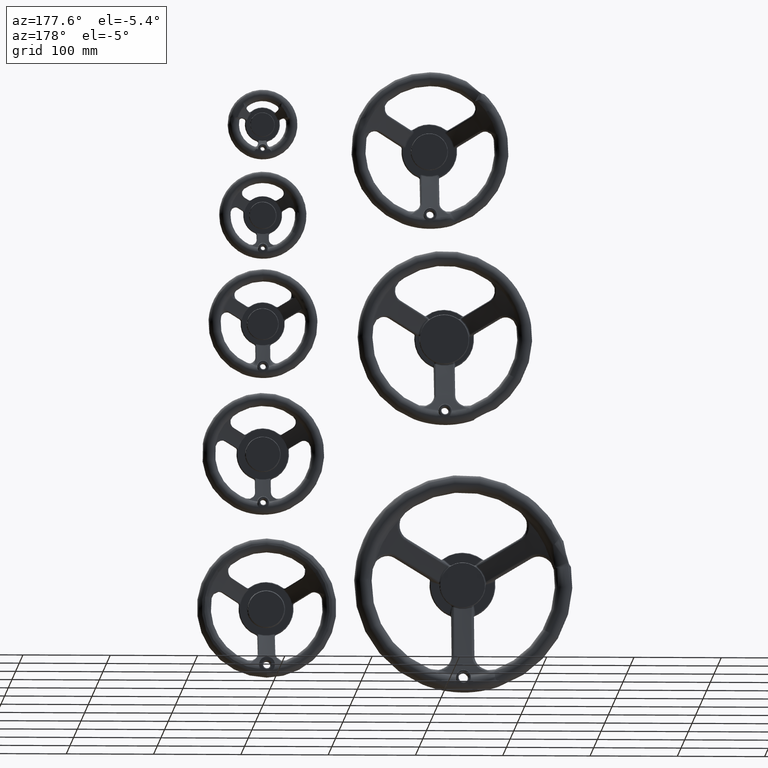
[diagram: clean part render]
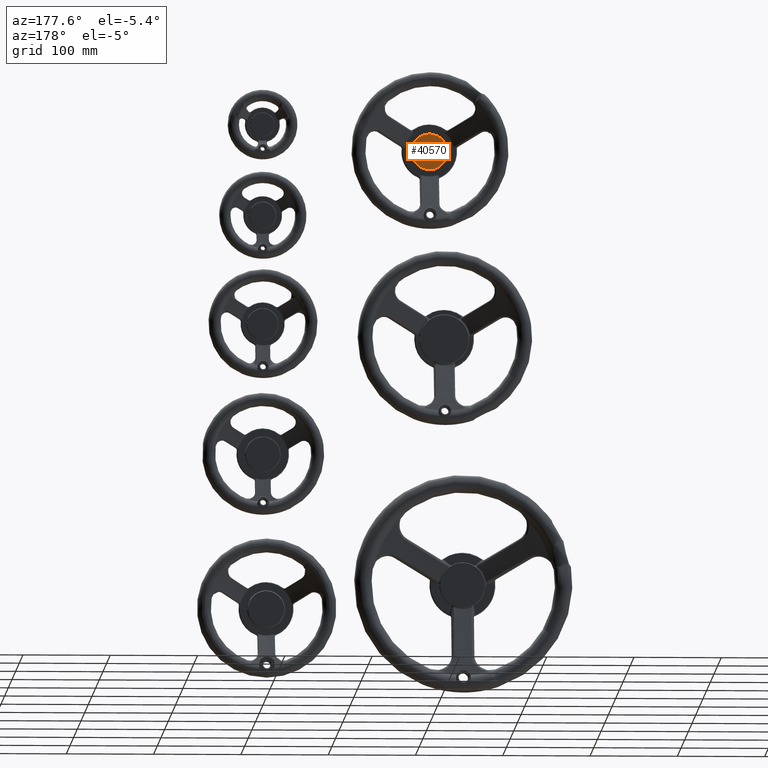
[diagram: same view with one face highlighted and labeled with its STEP entity id]
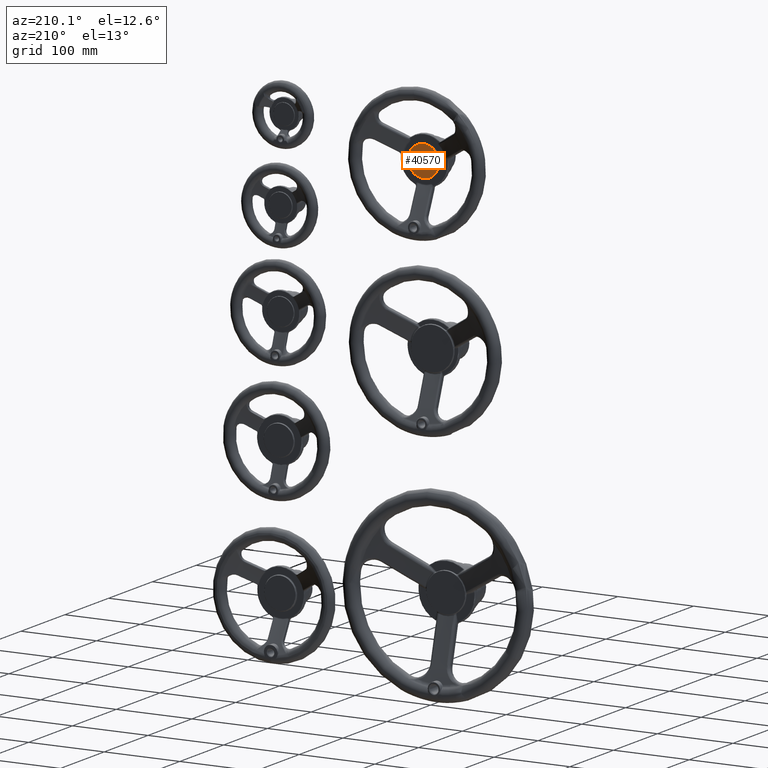
[diagram: same view with one face highlighted and labeled with its STEP entity id]
A machine part, auxiliary view. The second image highlights one B-rep face of the part: STEP entity #40570.
A second angle (auxiliary view) of the same face is appended — the face is thin or edge-on in the first view.
In plain terms, the highlighted planar face has unit normal (-0, 1, 0).
Its self-contained STEP definition (entity closure, byte-faithful):
#770=PLANE('',#43557);
#7085=FACE_OUTER_BOUND('',#10132,.T.);
#10132=EDGE_LOOP('',(#34650,#34651,#34652));
#12586=B_SPLINE_CURVE_WITH_KNOTS('',3,(#127424,#127425,#127426,#127427,
#127428,#127429,#127430,#127431,#127432,#127433,#127434,#127435,#127436,
#127437,#127438,#127439,#127440,#127441,#127442,#127443,#127444,#127445,
#127446,#127447,#127448,#127449,#127450,#127451,#127452,#127453,#127454,
#127455,#127456,#127457,#127458,#127459,#127460,#127461,#127462,#127463,
#127464,#127465,#127466),.UNSPECIFIED.,.F.,.F.,(4,3,3,3,3,3,3,3,3,3,3,3,
3,3,4),(0.,0.218749999999992,0.234374999999992,0.242187499999991,0.246093749999991,
0.248046874999991,0.249999999999991,0.371093749999995,0.480424179960308,
0.4921875,0.49609375,0.498046875,0.4990234375,0.499755859375,0.5),
 .UNSPECIFIED.);
#12587=B_SPLINE_CURVE_WITH_KNOTS('',3,(#127467,#127468,#127469,#127470,
#127471,#127472,#127473,#127474,#127475,#127476,#127477,#127478,#127479,
#127480,#127481,#127482,#127483,#127484,#127485,#127486,#127487,#127488,
#127489,#127490,#127491,#127492,#127493,#127494,#127495,#127496,#127497,
#127498,#127499,#127500,#127501,#127502,#127503,#127504,#127505,#127506,
#127507,#127508,#127509,#127510,#127511,#127512,#127513,#127514,#127515,
#127516,#127517,#127518,#127519,#127520,#127521,#127522,#127523,#127524,
#127525,#127526,#127527,#127528,#127529,#127530,#127531,#127532,#127533,
#127534,#127535,#127536,#127537,#127538,#127539,#127540,#127541,#127542,
#127543,#127544,#127545,#127546,#127547,#127548,#127549,#127550,#127551,
#127552,#127553,#127554,#127555,#127556,#127557,#127558,#127559,#127560,
#127561,#127562,#127563,#127564,#127565,#127566,#127567,#127568,#127569,
#127570,#127571,#127572,#127573,#127574,#127575,#127576,#127577,#127578,
#127579,#127580,#127581,#127582,#127583,#127584,#127585,#127586,#127587,
#127588,#127589,#127590,#127591,#127592,#127593,#127594,#127595,#127596,
#127597,#127598,#127599,#127600,#127601,#127602,#127603,#127604,#127605,
#127606,#127607,#127608,#127609,#127610,#127611,#127612,#127613,#127614,
#127615,#127616,#127617,#127618,#127619,#127620),.UNSPECIFIED.,.F.,.F.,
(4,3,3,3,3,3,3,3,3,3,3,3,3,3,3,3,3,3,3,3,3,3,3,3,3,3,3,3,3,3,3,3,3,3,3,
3,3,3,3,3,3,3,3,3,3,3,3,3,3,3,3,4),(0.5,0.515625000000022,0.523437500000034,
0.527343750000039,0.528564453125041,0.528648376464885,0.529945996859131,
0.531250000000044,0.554687500000067,0.556640625000069,0.557128906250069,
0.55725097656257,0.55761718750007,0.558593750000071,0.562500000000075,0.593750000000107,
0.609375000000123,0.617187500000131,0.621337890625135,0.621520996093885,
0.622070312500135,0.623046875000133,0.625000000000131,0.640625000000111,
0.642578125000108,0.642822265625108,0.642944335937608,0.643066406250107,
0.643554687500107,0.644531250000107,0.648437500000105,0.683593750000091,
0.683715820312591,0.68408203125009,0.68457031250009,0.685546875000089,0.687500000000086,
0.71875000000005,0.722656250000045,0.723632812500044,0.724121093750043,
0.724609375000043,0.726562500000042,0.776289223262953,0.785644531250012,
0.785888671875012,0.786132812500012,0.787109375000012,0.789062500000011,
0.796875000000011,0.936500274023214,1.),.UNSPECIFIED.);
#14842=CIRCLE('',#43164,20.5000021526814);
#17715=VERTEX_POINT('',#127420);
#17716=VERTEX_POINT('',#127421);
#17717=VERTEX_POINT('',#127423);
#23062=EDGE_CURVE('',#17715,#17716,#14842,.T.);
#23063=EDGE_CURVE('',#17716,#17717,#12586,.T.);
#23064=EDGE_CURVE('',#17717,#17715,#12587,.T.);
#34650=ORIENTED_EDGE('',*,*,#23062,.F.);
#34651=ORIENTED_EDGE('',*,*,#23064,.F.);
#34652=ORIENTED_EDGE('',*,*,#23063,.F.);
#40570=ADVANCED_FACE('',(#7085),#770,.T.);
#43164=AXIS2_PLACEMENT_3D('',#127422,#48757,#48758);
#43557=AXIS2_PLACEMENT_3D('',#140664,#49739,#49740);
#48757=DIRECTION('center_axis',(-1.,0.,-8.46206484788057E-17));
#48758=DIRECTION('ref_axis',(8.46206484788057E-17,0.,-1.));
#49739=DIRECTION('center_axis',(1.,0.,0.));
#49740=DIRECTION('ref_axis',(0.,0.,-1.));
#127420=CARTESIAN_POINT('',(-23.0000000000168,20.5000043053303,-1.25526310094312E-15));
#127421=CARTESIAN_POINT('',(-23.0000000000168,-20.5000000000945,2.51052620188081E-15));
#127422=CARTESIAN_POINT('Origin',(-23.0000000000168,2.15261865971206E-6,
-1.25526310093975E-15));
#127423=CARTESIAN_POINT('',(-23.0000000000168,2.21777069328422E-6,20.500002152687));
#127424=CARTESIAN_POINT('Ctrl Pts',(-23.0000000000168,-20.5000000000945,
2.04138867708003E-15));
#127425=CARTESIAN_POINT('Ctrl Pts',(-23.0000000000168,-20.4997998587796,
3.84760078369372));
#127426=CARTESIAN_POINT('Ctrl Pts',(-23.0000000281816,-19.3888604073873,
7.68874429376781));
#127427=CARTESIAN_POINT('Ctrl Pts',(-23.0000000056498,-17.3352254294781,
10.942435550206));
#127428=CARTESIAN_POINT('Ctrl Pts',(-23.0000000040404,-17.1885372167702,
11.174842068523));
#127429=CARTESIAN_POINT('Ctrl Pts',(-23.0000000026373,-17.0371754637199,
11.4042990255119));
#127430=CARTESIAN_POINT('Ctrl Pts',(-23.000000001627,-16.8812625502187,
11.6306210099951));
#127431=CARTESIAN_POINT('Ctrl Pts',(-23.0000000011219,-16.8033060934681,
11.7437820022368));
#127432=CARTESIAN_POINT('Ctrl Pts',(-23.0000000007249,-16.7242118466048,
11.856159251352));
#127433=CARTESIAN_POINT('Ctrl Pts',(-23.0000000004476,-16.6439959398508,
11.9677301435997));
#127434=CARTESIAN_POINT('Ctrl Pts',(-23.000000000309,-16.6038879864738,
12.0235155897236));
#127435=CARTESIAN_POINT('Ctrl Pts',(-23.0000000002012,-16.5634996181242,
12.0790994466306));
#127436=CARTESIAN_POINT('Ctrl Pts',(-23.0000000001282,-16.5228328729902,
12.134478904906));
#127437=CARTESIAN_POINT('Ctrl Pts',(-23.0000000000917,-16.5024995004232,
12.1621686340437));
#127438=CARTESIAN_POINT('Ctrl Pts',(-23.0000000000638,-16.4820965336601,
12.1898072635235));
#127439=CARTESIAN_POINT('Ctrl Pts',(-23.0000000000451,-16.4616242303807,
12.2173944442378));
#127440=CARTESIAN_POINT('Ctrl Pts',(-23.0000000000264,-16.4411519271013,
12.2449816249521));
#127441=CARTESIAN_POINT('Ctrl Pts',(-23.0000000000168,-16.4198219872318,
12.2735685369714));
#127442=CARTESIAN_POINT('Ctrl Pts',(-23.0000000000168,-16.3999995695369,
12.3000012916132));
#127443=CARTESIAN_POINT('Ctrl Pts',(-23.0000000000168,-15.1710096724501,
13.938832079406));
#127444=CARTESIAN_POINT('Ctrl Pts',(-23.0000000260871,-13.386464923349,
15.820393775382));
#127445=CARTESIAN_POINT('Ctrl Pts',(-23.0000000271848,-10.8052605140056,
17.4213416507351));
#127446=CARTESIAN_POINT('Ctrl Pts',(-23.0000000281759,-8.47480012369675,
18.8667698380396));
#127447=CARTESIAN_POINT('Ctrl Pts',(-23.0000000100146,-5.47434496025428,
20.0718222629464));
#127448=CARTESIAN_POINT('Ctrl Pts',(-23.0000000022854,-1.94189106544509,
20.4078683802598));
#127449=CARTESIAN_POINT('Ctrl Pts',(-23.0000000014538,-1.56181951807097,
20.4440249930846));
#127450=CARTESIAN_POINT('Ctrl Pts',(-23.0000000008037,-1.17608568116863,
20.4700048015325));
#127451=CARTESIAN_POINT('Ctrl Pts',(-23.000000000416,-0.785253577731358,
20.4849769548392));
#127452=CARTESIAN_POINT('Ctrl Pts',(-23.0000000002872,-0.6554698177979,
20.4899487632791));
#127453=CARTESIAN_POINT('Ctrl Pts',(-23.0000000001875,-0.52512460848241,
20.4937068323143));
#127454=CARTESIAN_POINT('Ctrl Pts',(-23.0000000001199,-0.394240845809501,
20.4962210412287));
#127455=CARTESIAN_POINT('Ctrl Pts',(-23.0000000000861,-0.328798964473051,
20.497478145686));
#127456=CARTESIAN_POINT('Ctrl Pts',(-23.0000000000603,-0.26322244479725,
20.4984242851131));
#127457=CARTESIAN_POINT('Ctrl Pts',(-23.000000000043,-0.197514276397226,
20.4990557167278));
#127458=CARTESIAN_POINT('Ctrl Pts',(-23.0000000000343,-0.164660192197209,
20.4993714325351));
#127459=CARTESIAN_POINT('Ctrl Pts',(-23.0000000000278,-0.131773195816135,
20.4996084713893));
#127460=CARTESIAN_POINT('Ctrl Pts',(-23.0000000000234,-0.0988536645838281,
20.4997663662699));
#127461=CARTESIAN_POINT('Ctrl Pts',(-23.0000000000201,-0.0741640161595999,
20.4998847874303));
#127462=CARTESIAN_POINT('Ctrl Pts',(-23.000000000018,-0.0494560668815459,
20.4999586901055));
#127463=CARTESIAN_POINT('Ctrl Pts',(-23.0000000000172,-0.024729977447337,
20.4999878775628));
#127464=CARTESIAN_POINT('Ctrl Pts',(-23.0000000000169,-0.0164879476359249,
20.4999976067153));
#127465=CARTESIAN_POINT('Ctrl Pts',(-23.0000000000168,-0.00663977895050186,
20.5000023257262));
#127466=CARTESIAN_POINT('Ctrl Pts',(-23.0000000000168,2.21777068826317E-6,
20.500002152687));
#127467=CARTESIAN_POINT('Ctrl Pts',(-23.0000000000168,2.21777069328422E-6,
20.500002152687));
#127468=CARTESIAN_POINT('Ctrl Pts',(-23.0000000000168,0.425085772997311,
20.4999910782854));
#127469=CARTESIAN_POINT('Ctrl Pts',(-22.9999999872144,0.850139700587894,
20.4868204667485));
#127470=CARTESIAN_POINT('Ctrl Pts',(-23.0000000274237,1.27435460509559,
20.4605205621599));
#127471=CARTESIAN_POINT('Ctrl Pts',(-23.0000000475283,1.48646205734944,
20.4473706098657));
#127472=CARTESIAN_POINT('Ctrl Pts',(-23.0000000833505,1.69835978322675,
20.4309391092036));
#127473=CARTESIAN_POINT('Ctrl Pts',(-23.0000001579675,1.90994692209189,
20.4112345054543));
#127474=CARTESIAN_POINT('Ctrl Pts',(-23.000000195276,2.01574049152446,20.4013822035797));
#127475=CARTESIAN_POINT('Ctrl Pts',(-23.0000002423941,2.12145641420398,
20.3907116259332));
#127476=CARTESIAN_POINT('Ctrl Pts',(-23.0000003031828,2.22708211718856,
20.3792241807216));
#127477=CARTESIAN_POINT('Ctrl Pts',(-23.0000003221793,2.26009014937124,
20.375634354093));
#127478=CARTESIAN_POINT('Ctrl Pts',(-23.0000003425622,2.29308892975336,
20.371960851335));
#127479=CARTESIAN_POINT('Ctrl Pts',(-23.0000003626583,2.32357396965904,
20.3685000115589));
#127480=CARTESIAN_POINT('Ctrl Pts',(-23.0000003640399,2.32566981615256,
20.3682620788243));
#127481=CARTESIAN_POINT('Ctrl Pts',(-23.0000003646411,2.32658142316794,
20.3681583663615));
#127482=CARTESIAN_POINT('Ctrl Pts',(-23.0000003649382,2.32704512521489,
20.3681056361879));
#127483=CARTESIAN_POINT('Ctrl Pts',(-23.0000003695315,2.3342148736317,20.3672903236801));
#127484=CARTESIAN_POINT('Ctrl Pts',(-23.0000003682825,2.33492447623529,
20.3672075724158));
#127485=CARTESIAN_POINT('Ctrl Pts',(-23.0000003691334,2.34097574593434,
20.3665127305554));
#127486=CARTESIAN_POINT('Ctrl Pts',(-23.0000003699886,2.34705678067227,
20.3658144709006));
#127487=CARTESIAN_POINT('Ctrl Pts',(-23.0000003702898,2.35460748502368,
20.3649442262714));
#127488=CARTESIAN_POINT('Ctrl Pts',(-23.000000370048,2.3636272877478,20.3638971031811));
#127489=CARTESIAN_POINT('Ctrl Pts',(-23.000000365702,2.52574470887507,20.3450766366814));
#127490=CARTESIAN_POINT('Ctrl Pts',(-23.0000001238988,3.16645838336465,
20.2853395103873));
#127491=CARTESIAN_POINT('Ctrl Pts',(-23.0000000273892,4.26115536248347,
20.0524174327412));
#127492=CARTESIAN_POINT('Ctrl Pts',(-23.0000000193467,4.35238011074338,
20.0330072596041));
#127493=CARTESIAN_POINT('Ctrl Pts',(-23.0000000127409,4.44671945922486,
20.0122843219812));
#127494=CARTESIAN_POINT('Ctrl Pts',(-23.0000000080268,4.54413366108202,
19.9901132202191));
#127495=CARTESIAN_POINT('Ctrl Pts',(-23.0000000068483,4.56848721154631,
19.9845704447786));
#127496=CARTESIAN_POINT('Ctrl Pts',(-23.0000000057956,4.59303294034658,
19.9789371590794));
#127497=CARTESIAN_POINT('Ctrl Pts',(-23.0000000048626,4.61777011556999,
19.9732110934438));
#127498=CARTESIAN_POINT('Ctrl Pts',(-23.0000000046293,4.62395440937585,
19.9717795770349));
#127499=CARTESIAN_POINT('Ctrl Pts',(-23.0000000045892,4.62511053108362,
19.9715108048964));
#127500=CARTESIAN_POINT('Ctrl Pts',(-23.0000000044761,4.62826005457544,
19.9707800287144));
#127501=CARTESIAN_POINT('Ctrl Pts',(-23.0000000041367,4.63770862505089,
19.9685877001683));
#127502=CARTESIAN_POINT('Ctrl Pts',(-23.0000000038211,4.64715563830284,
19.9663886994553));
#127503=CARTESIAN_POINT('Ctrl Pts',(-23.0000000035277,4.65660108497487,
19.9641830288634));
#127504=CARTESIAN_POINT('Ctrl Pts',(-23.0000000027453,4.68178894276696,
19.9583012406183));
#127505=CARTESIAN_POINT('Ctrl Pts',(-23.000000002121,4.70696566044702,19.9523720221693));
#127506=CARTESIAN_POINT('Ctrl Pts',(-23.0000000016281,4.73213106003977,
19.9463954147399));
#127507=CARTESIAN_POINT('Ctrl Pts',(-22.9999999996565,4.83279265841085,
19.9224889850222));
#127508=CARTESIAN_POINT('Ctrl Pts',(-22.9999999997505,4.93327316738525,
19.897824331618));
#127509=CARTESIAN_POINT('Ctrl Pts',(-23.0000000005195,5.03356124351402,
19.87240428077));
#127510=CARTESIAN_POINT('Ctrl Pts',(-23.0000000066716,5.83586585254417,
19.6690438739863));
#127511=CARTESIAN_POINT('Ctrl Pts',(-22.9999998900958,6.62583725561061,
19.4172821203308));
#127512=CARTESIAN_POINT('Ctrl Pts',(-23.0000000768095,7.39778110880787,
19.118951764468));
#127513=CARTESIAN_POINT('Ctrl Pts',(-23.0000001701664,7.78375303540651,
18.9697865865366));
#127514=CARTESIAN_POINT('Ctrl Pts',(-23.0000004967093,8.1641133497229,18.8094730209392));
#127515=CARTESIAN_POINT('Ctrl Pts',(-23.0000004022424,8.53875217007141,
18.6377530705665));
#127516=CARTESIAN_POINT('Ctrl Pts',(-23.000000355009,8.72607158024567,18.5518930953801));
#127517=CARTESIAN_POINT('Ctrl Pts',(-23.0000002245184,8.91204480390493,
18.4631659323731));
#127518=CARTESIAN_POINT('Ctrl Pts',(-23.0000001166845,9.09658356055299,
18.3716166762669));
#127519=CARTESIAN_POINT('Ctrl Pts',(-23.0000000593978,9.19461977502227,
18.3229811339605));
#127520=CARTESIAN_POINT('Ctrl Pts',(-23.0000000106917,9.29225114479751,
18.2735491220187));
#127521=CARTESIAN_POINT('Ctrl Pts',(-23.0000000015269,9.38946464667931,
18.2233277867307));
#127522=CARTESIAN_POINT('Ctrl Pts',(-23.0000000011226,9.39375347764468,
18.2211121395857));
#127523=CARTESIAN_POINT('Ctrl Pts',(-23.0000000009571,9.3961803038154,18.2198568253191));
#127524=CARTESIAN_POINT('Ctrl Pts',(-23.000000000908,9.396893067734,18.2194882858506));
#127525=CARTESIAN_POINT('Ctrl Pts',(-23.0000000007609,9.39903135948981,
18.2183826674452));
#127526=CARTESIAN_POINT('Ctrl Pts',(-23.0000000006387,9.40143205538128,
18.2171413681995));
#127527=CARTESIAN_POINT('Ctrl Pts',(-23.0000000005364,9.4040949917878,18.2157640724005));
#127528=CARTESIAN_POINT('Ctrl Pts',(-23.0000000003546,9.40882910095496,
18.2133155465354));
#127529=CARTESIAN_POINT('Ctrl Pts',(-23.0000000002352,9.41439201886839,
18.2104372029047));
#127530=CARTESIAN_POINT('Ctrl Pts',(-23.0000000001598,9.42078267876038,
18.207126976488));
#127531=CARTESIAN_POINT('Ctrl Pts',(-23.0000000000088,9.43356399854435,
18.2005065236544));
#127532=CARTESIAN_POINT('Ctrl Pts',(-23.0000000000055,9.44965628624258,
18.1921585396765));
#127533=CARTESIAN_POINT('Ctrl Pts',(-23.0000000000242,9.46904584611154,
18.1820567683102));
#127534=CARTESIAN_POINT('Ctrl Pts',(-23.0000000001736,9.62416232506322,
18.1012425973805));
#127535=CARTESIAN_POINT('Ctrl Pts',(-22.9999999746275,9.9925841117188,17.9116239224439));
#127536=CARTESIAN_POINT('Ctrl Pts',(-23.000000040733,10.5524540049209,17.575668445213));
#127537=CARTESIAN_POINT('Ctrl Pts',(-23.0000000489962,10.6224377415712,
17.5336740105592));
#127538=CARTESIAN_POINT('Ctrl Pts',(-23.0000000591141,10.6953741344977,
17.4893412151399));
#127539=CARTESIAN_POINT('Ctrl Pts',(-23.0000000716692,10.771184783717,17.4425539394143));
#127540=CARTESIAN_POINT('Ctrl Pts',(-23.0000000732386,10.7806611148694,
17.4367055299487));
#127541=CARTESIAN_POINT('Ctrl Pts',(-23.0000000748547,10.7901823562763,
17.4308187692282));
#127542=CARTESIAN_POINT('Ctrl Pts',(-23.0000000765028,10.7997483219298,
17.4248934006416));
#127543=CARTESIAN_POINT('Ctrl Pts',(-23.0000000773269,10.8045313047566,
17.4219307163483));
#127544=CARTESIAN_POINT('Ctrl Pts',(-23.0000000774109,10.8050017508349,
17.4216382572438));
#127545=CARTESIAN_POINT('Ctrl Pts',(-23.0000000775844,10.8060150914256,
17.4210100625252));
#127546=CARTESIAN_POINT('Ctrl Pts',(-23.0000000777578,10.8070284320163,
17.4203818678066));
#127547=CARTESIAN_POINT('Ctrl Pts',(-23.0000000779307,10.8080464191074,
17.4197506665264));
#127548=CARTESIAN_POINT('Ctrl Pts',(-23.0000000781028,10.8090690511525,
17.4191164562272));
#127549=CARTESIAN_POINT('Ctrl Pts',(-23.0000000787915,10.813159579333,17.4165796150301));
#127550=CARTESIAN_POINT('Ctrl Pts',(-23.0000000794692,10.8173244267766,
17.4139946295283));
#127551=CARTESIAN_POINT('Ctrl Pts',(-23.0000000801272,10.8215634835252,
17.4113613268932));
#127552=CARTESIAN_POINT('Ctrl Pts',(-23.0000000814432,10.8300415970224,
17.4060947216231));
#127553=CARTESIAN_POINT('Ctrl Pts',(-23.0000000826753,10.8388165477394,
17.40063484782));
#127554=CARTESIAN_POINT('Ctrl Pts',(-23.0000000839337,10.8478875913434,
17.3949805089838));
#127555=CARTESIAN_POINT('Ctrl Pts',(-23.0000000889674,10.8841717657594,
17.372363153639));
#127556=CARTESIAN_POINT('Ctrl Pts',(-23.0000000931494,10.9251934263672,
17.3466343577649));
#127557=CARTESIAN_POINT('Ctrl Pts',(-23.0000000963309,10.9708874973634,
17.3176928966745));
#127558=CARTESIAN_POINT('Ctrl Pts',(-23.0000001249642,11.3821341363297,
17.0572197468604));
#127559=CARTESIAN_POINT('Ctrl Pts',(-23.0000000151297,12.183527251691,16.5467745071141));
#127560=CARTESIAN_POINT('Ctrl Pts',(-23.0000000009456,13.2549371135584,
15.6383514781207));
#127561=CARTESIAN_POINT('Ctrl Pts',(-23.0000000008963,13.2586572866898,
15.6351972314923));
#127562=CARTESIAN_POINT('Ctrl Pts',(-23.0000000008501,13.2623175296904,
15.632091055566));
#127563=CARTESIAN_POINT('Ctrl Pts',(-23.0000000008236,13.264469158093,15.6302644857116));
#127564=CARTESIAN_POINT('Ctrl Pts',(-23.0000000007441,13.2709240433007,
15.6247847761486));
#127565=CARTESIAN_POINT('Ctrl Pts',(-23.0000000006715,13.2773755433031,
15.6193010851062));
#127566=CARTESIAN_POINT('Ctrl Pts',(-23.0000000006055,13.2838236532119,
15.613813416757));
#127567=CARTESIAN_POINT('Ctrl Pts',(-23.0000000005175,13.2924211330905,
15.6064965256246));
#127568=CARTESIAN_POINT('Ctrl Pts',(-23.000000000441,13.3010125861362,15.5991725637245));
#127569=CARTESIAN_POINT('Ctrl Pts',(-23.000000000375,13.3095980007791,15.5918415409658));
#127570=CARTESIAN_POINT('Ctrl Pts',(-23.000000000243,13.3267688300647,15.5771794954484));
#127571=CARTESIAN_POINT('Ctrl Pts',(-23.0000000001529,13.3439155057388,
15.5624892064968));
#127572=CARTESIAN_POINT('Ctrl Pts',(-23.0000000000961,13.3610379495773,
15.5477707684086));
#127573=CARTESIAN_POINT('Ctrl Pts',(-22.9999999999826,13.3952828372544,
15.5183338922322));
#127574=CARTESIAN_POINT('Ctrl Pts',(-22.9999999999989,13.4294307975897,
15.4887844195094));
#127575=CARTESIAN_POINT('Ctrl Pts',(-23.000000000089,13.4634809446934,15.459122832684));
#127576=CARTESIAN_POINT('Ctrl Pts',(-23.0000000015303,14.0082832983531,
14.9845374434773));
#127577=CARTESIAN_POINT('Ctrl Pts',(-22.9999999600632,14.5280454647413,
14.4812508439855));
#127578=CARTESIAN_POINT('Ctrl Pts',(-23.0000000284258,15.0199041234921,
13.9520444244327));
#127579=CARTESIAN_POINT('Ctrl Pts',(-23.0000000369712,15.0813864558359,
13.8858936219886));
#127580=CARTESIAN_POINT('Ctrl Pts',(-23.0000000481862,15.1424331728942,
13.8193382016902));
#127581=CARTESIAN_POINT('Ctrl Pts',(-23.0000000631866,15.2030390107874,
13.7523839166872));
#127582=CARTESIAN_POINT('Ctrl Pts',(-23.0000000669367,15.2181904702607,
13.7356453454365));
#127583=CARTESIAN_POINT('Ctrl Pts',(-23.000000070924,15.2333143747862,13.7188818451417));
#127584=CARTESIAN_POINT('Ctrl Pts',(-23.0000000751681,15.2484106433762,
13.7020935068401));
#127585=CARTESIAN_POINT('Ctrl Pts',(-23.0000000772901,15.2559587776712,
13.6936993376893));
#127586=CARTESIAN_POINT('Ctrl Pts',(-23.0000000794764,15.2635000029824,
13.6852989590368));
#127587=CARTESIAN_POINT('Ctrl Pts',(-23.0000000817293,15.2710343091106,
13.6768923821929));
#127588=CARTESIAN_POINT('Ctrl Pts',(-23.0000000839822,15.2785686152388,
13.668485805349));
#127589=CARTESIAN_POINT('Ctrl Pts',(-23.000000086874,15.2878362575413,13.6581221989906));
#127590=CARTESIAN_POINT('Ctrl Pts',(-23.0000000871542,15.2887594017534,
13.657089475213));
#127591=CARTESIAN_POINT('Ctrl Pts',(-23.0000000882746,15.2924519786019,
13.6529585801027));
#127592=CARTESIAN_POINT('Ctrl Pts',(-23.0000000893517,15.2969276402367,
13.647947684695));
#127593=CARTESIAN_POINT('Ctrl Pts',(-23.0000000903823,15.3021837925309,
13.6420544774728));
#127594=CARTESIAN_POINT('Ctrl Pts',(-23.0000001166228,15.4360058625788,
13.4920129365207));
#127595=CARTESIAN_POINT('Ctrl Pts',(-23.0000001021802,16.1122518965178,
12.7924057555532));
#127596=CARTESIAN_POINT('Ctrl Pts',(-23.0000000640412,17.0692976941475,
11.3533965092326));
#127597=CARTESIAN_POINT('Ctrl Pts',(-23.000000056866,17.2493509453382,11.0826693466087));
#127598=CARTESIAN_POINT('Ctrl Pts',(-23.0000000492147,17.4379915395746,
10.7851528522331));
#127599=CARTESIAN_POINT('Ctrl Pts',(-23.0000000417047,17.631433204946,10.4590199625796));
#127600=CARTESIAN_POINT('Ctrl Pts',(-23.0000000415087,17.6364813518536,
10.450509041547));
#127601=CARTESIAN_POINT('Ctrl Pts',(-23.0000000414046,17.639168287425,10.4459696340226));
#127602=CARTESIAN_POINT('Ctrl Pts',(-23.0000000412894,17.642145492957,10.4409384676082));
#127603=CARTESIAN_POINT('Ctrl Pts',(-23.0000000411742,17.6451226984891,
10.4359073011938));
#127604=CARTESIAN_POINT('Ctrl Pts',(-23.0000000410593,17.6480967750931,
10.4308765122559));
#127605=CARTESIAN_POINT('Ctrl Pts',(-23.0000000409448,17.6510677259177,
10.4258461051403));
#127606=CARTESIAN_POINT('Ctrl Pts',(-23.0000000404867,17.6629515292161,
10.4057244766779));
#127607=CARTESIAN_POINT('Ctrl Pts',(-23.0000000400339,17.6747853200432,
10.3856089573725));
#127608=CARTESIAN_POINT('Ctrl Pts',(-23.0000000395861,17.6865693018354,
10.3654998197996));
#127609=CARTESIAN_POINT('Ctrl Pts',(-23.0000000386904,17.7101372654198,
10.3252815446538));
#127610=CARTESIAN_POINT('Ctrl Pts',(-23.0000000378144,17.7335059928648,
10.2850887964378));
#127611=CARTESIAN_POINT('Ctrl Pts',(-23.000000036962,17.7566770902506,10.2449238223426));
#127612=CARTESIAN_POINT('Ctrl Pts',(-23.0000000335524,17.849361479794,10.0842639259617));
#127613=CARTESIAN_POINT('Ctrl Pts',(-23.0000000304684,17.9388837883904,
9.92404841551299));
#127614=CARTESIAN_POINT('Ctrl Pts',(-23.000000027676,18.0253498455093,9.76441230051648));
#127615=CARTESIAN_POINT('Ctrl Pts',(-22.9999999777701,19.5706742511328,
6.91139005406691));
#127616=CARTESIAN_POINT('Ctrl Pts',(-23.0000000032312,20.1429325576023,
4.29762266078221));
#127617=CARTESIAN_POINT('Ctrl Pts',(-23.000000002824,20.3681841495433,2.32057710360972));
#127618=CARTESIAN_POINT('Ctrl Pts',(-23.0000000026389,20.4706255912104,
1.42144296043723));
#127619=CARTESIAN_POINT('Ctrl Pts',(-23.0000000000168,20.4999707306357,
0.645425188683558));
#127620=CARTESIAN_POINT('Ctrl Pts',(-23.0000000000168,20.5000043053303,
-2.51052620188136E-15));
#140664=CARTESIAN_POINT('Origin',(-23.,2.152618659323E-6,0.));